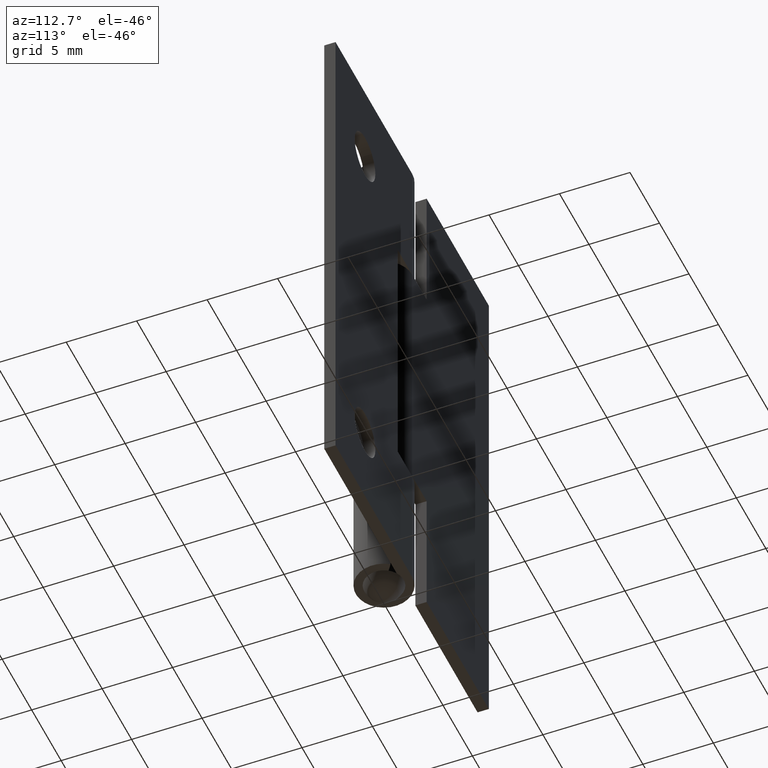
[diagram: clean part render]
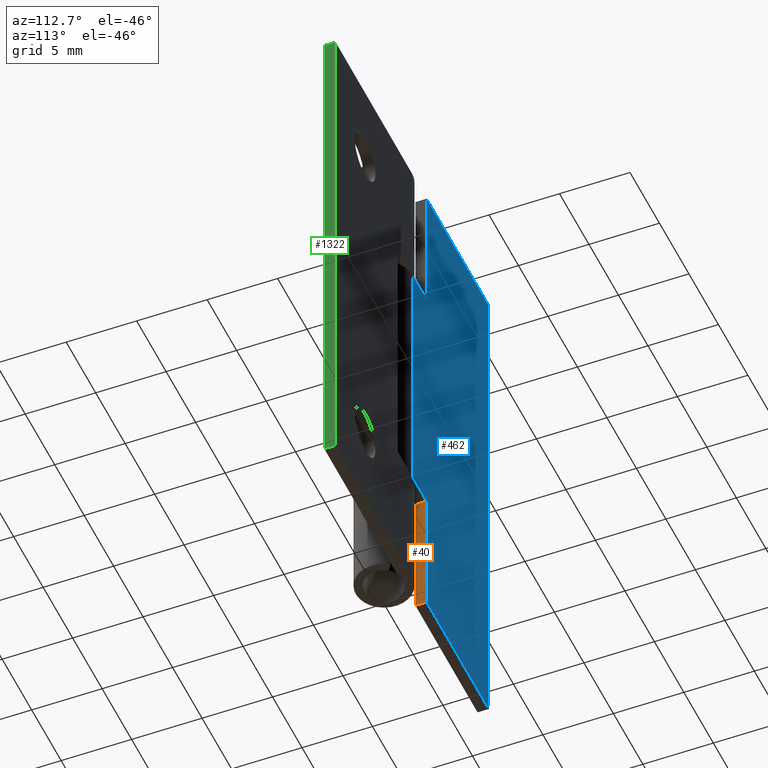
[diagram: same view with three faces highlighted in distinct colors, each labeled with its STEP entity id]
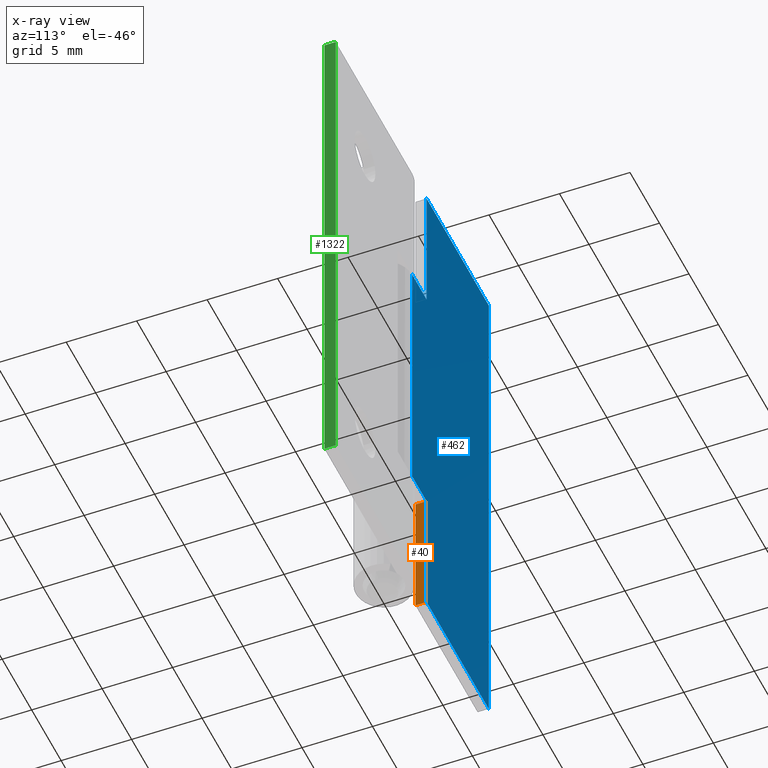
[diagram: x-ray of the same camera — body ghosted, the three highlighted faces saturated]
A machine part, auxiliary view with three faces highlighted in distinct colors.
The next image is the same camera in x-ray (body ghosted, the three faces saturated) — at least one of them is partly hidden behind the body in this view.
Their STEP definitions:

[orange] entity #40 — the highlighted face is a freeform B-spline surface patch.
#5=CARTESIAN_POINT('',(-2.450000000000000,1.160040001550534,-0.474524981587187));
#6=CARTESIAN_POINT('',(-2.450000000000000,1.160040001550534,9.974525236397014));
#7=CARTESIAN_POINT('',(-2.450000000000000,2.039960019907118,-0.474524981587187));
#8=CARTESIAN_POINT('',(-2.450000000000000,2.039960019907118,9.974525236397014));
#9=B_SPLINE_SURFACE_WITH_KNOTS('',1,1,((#5,#7),(#6,#8)),.UNSPECIFIED.,.F.,.F.,.U.,(2,2),(2,2),(0.0,10.449050217984199),(0.041708334948495,0.958291687403247),.UNSPECIFIED.);
#10=CARTESIAN_POINT('',(-2.450000000000000,1.200000000000000,0.0));
#11=VERTEX_POINT('',#10);
#12=CARTESIAN_POINT('',(-2.450000000000000,2.0,-2.842171E-014));
#13=VERTEX_POINT('',#12);
#14=CARTESIAN_POINT('',(-2.450000000000000,1.200000000000000,0.0));
#15=CARTESIAN_POINT('',(-2.450000000000000,2.0,-2.842171E-014));
#16=QUASI_UNIFORM_CURVE('',1,(#14,#15),.UNSPECIFIED.,.F.,.U.);
#17=EDGE_CURVE('',#11,#13,#16,.T.);
#18=ORIENTED_EDGE('',*,*,#17,.T.);
#19=CARTESIAN_POINT('',(-2.450000000000000,2.0,9.500000000000000));
#20=VERTEX_POINT('',#19);
#21=CARTESIAN_POINT('',(-2.450000000000000,2.0,-2.842171E-014));
#22=CARTESIAN_POINT('',(-2.450000000000000,2.0,9.500000000000000));
#23=QUASI_UNIFORM_CURVE('',1,(#21,#22),.UNSPECIFIED.,.F.,.U.);
#24=EDGE_CURVE('',#13,#20,#23,.T.);
#25=ORIENTED_EDGE('',*,*,#24,.T.);
#26=CARTESIAN_POINT('',(-2.450000000000000,1.199999999999980,9.500000000000000));
#27=VERTEX_POINT('',#26);
#28=CARTESIAN_POINT('',(-2.450000000000000,1.199999999999980,9.500000000000000));
#29=CARTESIAN_POINT('',(-2.450000000000000,2.0,9.500000000000000));
#30=QUASI_UNIFORM_CURVE('',1,(#28,#29),.UNSPECIFIED.,.F.,.U.);
#31=EDGE_CURVE('',#27,#20,#30,.T.);
#32=ORIENTED_EDGE('',*,*,#31,.F.);
#33=CARTESIAN_POINT('',(-2.450000000000000,1.200000000000000,0.0));
#34=CARTESIAN_POINT('',(-2.450000000000000,1.199999999999980,9.500000000000000));
#35=QUASI_UNIFORM_CURVE('',1,(#33,#34),.UNSPECIFIED.,.F.,.U.);
#36=EDGE_CURVE('',#11,#27,#35,.T.);
#37=ORIENTED_EDGE('',*,*,#36,.F.);
#38=EDGE_LOOP('',(#18,#25,#32,#37));
#39=FACE_OUTER_BOUND('',#38,.T.);
#40=ADVANCED_FACE('',(#39),#9,.F.);

[blue] entity #462 — the highlighted face is a freeform B-spline surface patch.
#12=CARTESIAN_POINT('',(-2.450000000000000,2.0,-2.842171E-014));
#13=VERTEX_POINT('',#12);
#19=CARTESIAN_POINT('',(-2.450000000000000,2.0,9.500000000000000));
#20=VERTEX_POINT('',#19);
#21=CARTESIAN_POINT('',(-2.450000000000000,2.0,-2.842171E-014));
#22=CARTESIAN_POINT('',(-2.450000000000000,2.0,9.500000000000000));
#23=QUASI_UNIFORM_CURVE('',1,(#21,#22),.UNSPECIFIED.,.F.,.U.);
#24=EDGE_CURVE('',#13,#20,#23,.T.);
#47=CARTESIAN_POINT('',(-0.000000034906577,2.0,9.500000000000000));
#48=VERTEX_POINT('',#47);
#49=CARTESIAN_POINT('',(-2.450000000000000,2.0,9.500000000000000));
#50=CARTESIAN_POINT('',(-0.000000034906577,2.0,9.500000000000000));
#51=QUASI_UNIFORM_CURVE('',1,(#49,#50),.UNSPECIFIED.,.F.,.U.);
#52=EDGE_CURVE('',#20,#48,#51,.T.);
#144=CARTESIAN_POINT('',(-2.450000000000000,2.0,28.500000000000000));
#145=VERTEX_POINT('',#144);
#151=CARTESIAN_POINT('',(-2.450000000000000,2.0,38.0));
#152=VERTEX_POINT('',#151);
#153=CARTESIAN_POINT('',(-2.450000000000000,2.0,28.500000000000000));
#154=CARTESIAN_POINT('',(-2.450000000000000,2.0,38.0));
#155=QUASI_UNIFORM_CURVE('',1,(#153,#154),.UNSPECIFIED.,.F.,.U.);
#156=EDGE_CURVE('',#145,#152,#155,.T.);
#220=CARTESIAN_POINT('',(-0.000000034906577,2.0,28.500000000000000));
#221=VERTEX_POINT('',#220);
#255=CARTESIAN_POINT('',(-0.000000034906577,2.0,28.500000000000000));
#256=CARTESIAN_POINT('',(-2.450000000000000,2.0,28.500000000000000));
#257=QUASI_UNIFORM_CURVE('',1,(#255,#256),.UNSPECIFIED.,.F.,.U.);
#258=EDGE_CURVE('',#221,#145,#257,.T.);
#282=CARTESIAN_POINT('',(-13.0,2.0,0.0));
#283=VERTEX_POINT('',#282);
#289=CARTESIAN_POINT('',(-2.450000000000000,2.0,-2.842171E-014));
#290=CARTESIAN_POINT('',(-13.0,2.0,0.0));
#291=QUASI_UNIFORM_CURVE('',1,(#289,#290),.UNSPECIFIED.,.F.,.U.);
#292=EDGE_CURVE('',#13,#283,#291,.T.);
#310=CARTESIAN_POINT('',(-13.0,2.0,38.0));
#311=VERTEX_POINT('',#310);
#312=CARTESIAN_POINT('',(-2.450000000000000,2.0,38.0));
#313=CARTESIAN_POINT('',(-13.0,2.0,38.0));
#314=QUASI_UNIFORM_CURVE('',1,(#312,#313),.UNSPECIFIED.,.F.,.U.);
#315=EDGE_CURVE('',#152,#311,#314,.T.);
#353=CARTESIAN_POINT('',(-0.000000034906577,2.0,28.500000000000000));
#354=CARTESIAN_POINT('',(-0.000000034906577,2.0,9.500000000000000));
#355=QUASI_UNIFORM_CURVE('',1,(#353,#354),.UNSPECIFIED.,.F.,.U.);
#356=EDGE_CURVE('',#221,#48,#355,.T.);
#439=CARTESIAN_POINT('',(-13.0,2.0,38.0));
#440=CARTESIAN_POINT('',(-13.0,2.0,0.0));
#441=QUASI_UNIFORM_CURVE('',1,(#439,#440),.UNSPECIFIED.,.F.,.U.);
#442=EDGE_CURVE('',#311,#283,#441,.T.);
#447=CARTESIAN_POINT('',(-13.649349973059900,2.0,39.898099926348621));
#448=CARTESIAN_POINT('',(-13.649349973059900,2.0,-1.898100945588080));
#449=CARTESIAN_POINT('',(0.649350286840489,2.0,39.898099926348621));
#450=CARTESIAN_POINT('',(0.649350286840489,2.0,-1.898100945588080));
#451=B_SPLINE_SURFACE_WITH_KNOTS('',1,1,((#447,#449),(#448,#450)),.UNSPECIFIED.,.F.,.F.,.U.,(2,2),(2,2),(0.0,41.796200871936712),(0.0,14.298700259900389),.UNSPECIFIED.);
#452=ORIENTED_EDGE('',*,*,#52,.F.);
#453=ORIENTED_EDGE('',*,*,#24,.F.);
#454=ORIENTED_EDGE('',*,*,#292,.T.);
#455=ORIENTED_EDGE('',*,*,#442,.F.);
#456=ORIENTED_EDGE('',*,*,#315,.F.);
#457=ORIENTED_EDGE('',*,*,#156,.F.);
#458=ORIENTED_EDGE('',*,*,#258,.F.);
#459=ORIENTED_EDGE('',*,*,#356,.T.);
#460=EDGE_LOOP('',(#452,#453,#454,#455,#456,#457,#458,#459));
#461=FACE_OUTER_BOUND('',#460,.T.);
#462=ADVANCED_FACE('',(#461),#451,.F.);

[green] entity #1322 — the highlighted face is a freeform B-spline surface patch.
#876=CARTESIAN_POINT('',(13.0,1.200000000000000,0.0));
#877=VERTEX_POINT('',#876);
#883=CARTESIAN_POINT('',(13.0,1.200000000000000,38.0));
#884=VERTEX_POINT('',#883);
#885=CARTESIAN_POINT('',(13.0,1.200000000000000,38.0));
#886=CARTESIAN_POINT('',(13.0,1.200000000000000,0.0));
#887=QUASI_UNIFORM_CURVE('',1,(#885,#886),.UNSPECIFIED.,.F.,.U.);
#888=EDGE_CURVE('',#884,#877,#887,.T.);
#1126=CARTESIAN_POINT('',(13.0,2.0,0.0));
#1127=VERTEX_POINT('',#1126);
#1135=CARTESIAN_POINT('',(13.0,1.200000000000000,0.0));
#1136=CARTESIAN_POINT('',(13.0,2.0,0.0));
#1137=QUASI_UNIFORM_CURVE('',1,(#1135,#1136),.UNSPECIFIED.,.F.,.U.);
#1138=EDGE_CURVE('',#877,#1127,#1137,.T.);
#1218=CARTESIAN_POINT('',(13.0,2.0,38.0));
#1219=VERTEX_POINT('',#1218);
#1299=CARTESIAN_POINT('',(13.0,1.200000000000000,38.0));
#1300=CARTESIAN_POINT('',(13.0,2.0,38.0));
#1301=QUASI_UNIFORM_CURVE('',1,(#1299,#1300),.UNSPECIFIED.,.F.,.U.);
#1302=EDGE_CURVE('',#884,#1219,#1301,.T.);
#1307=CARTESIAN_POINT('',(13.0,1.160040001550555,-1.898099926348628));
#1308=CARTESIAN_POINT('',(13.0,1.160040001550555,39.898100945588048));
#1309=CARTESIAN_POINT('',(13.0,2.039960019907117,-1.898099926348628));
#1310=CARTESIAN_POINT('',(13.0,2.039960019907117,39.898100945588048));
#1311=B_SPLINE_SURFACE_WITH_KNOTS('',1,1,((#1307,#1309),(#1308,#1310)),.UNSPECIFIED.,.F.,.F.,.U.,(2,2),(2,2),(0.0,41.796200871936684),(0.041708334948495,0.958291687403247),.UNSPECIFIED.);
#1312=ORIENTED_EDGE('',*,*,#1138,.T.);
#1313=CARTESIAN_POINT('',(13.0,2.0,38.0));
#1314=CARTESIAN_POINT('',(13.0,2.0,0.0));
#1315=QUASI_UNIFORM_CURVE('',1,(#1313,#1314),.UNSPECIFIED.,.F.,.U.);
#1316=EDGE_CURVE('',#1219,#1127,#1315,.T.);
#1317=ORIENTED_EDGE('',*,*,#1316,.F.);
#1318=ORIENTED_EDGE('',*,*,#1302,.F.);
#1319=ORIENTED_EDGE('',*,*,#888,.T.);
#1320=EDGE_LOOP('',(#1312,#1317,#1318,#1319));
#1321=FACE_OUTER_BOUND('',#1320,.T.);
#1322=ADVANCED_FACE('',(#1321),#1311,.F.);